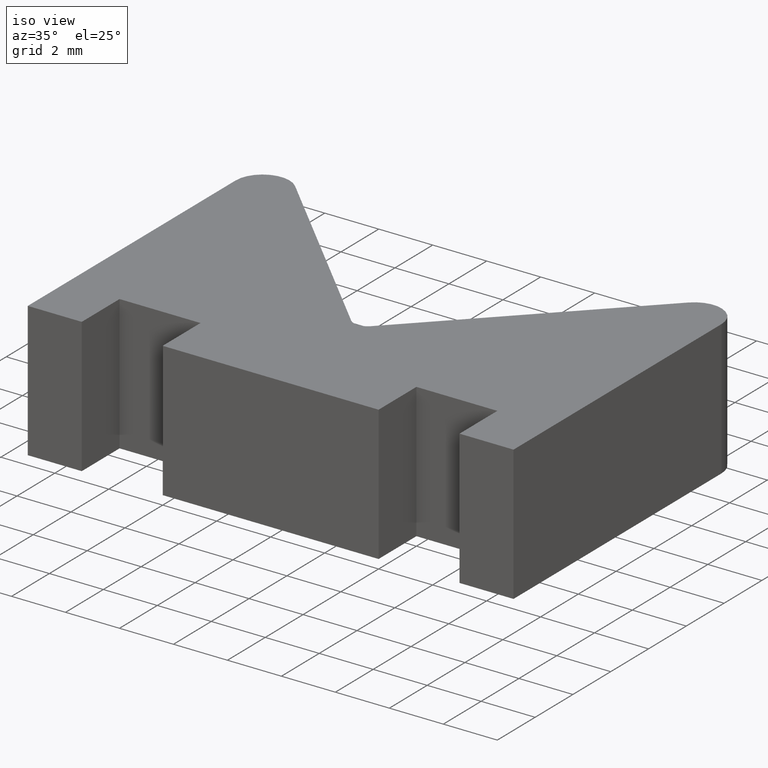
[diagram: clean part render]
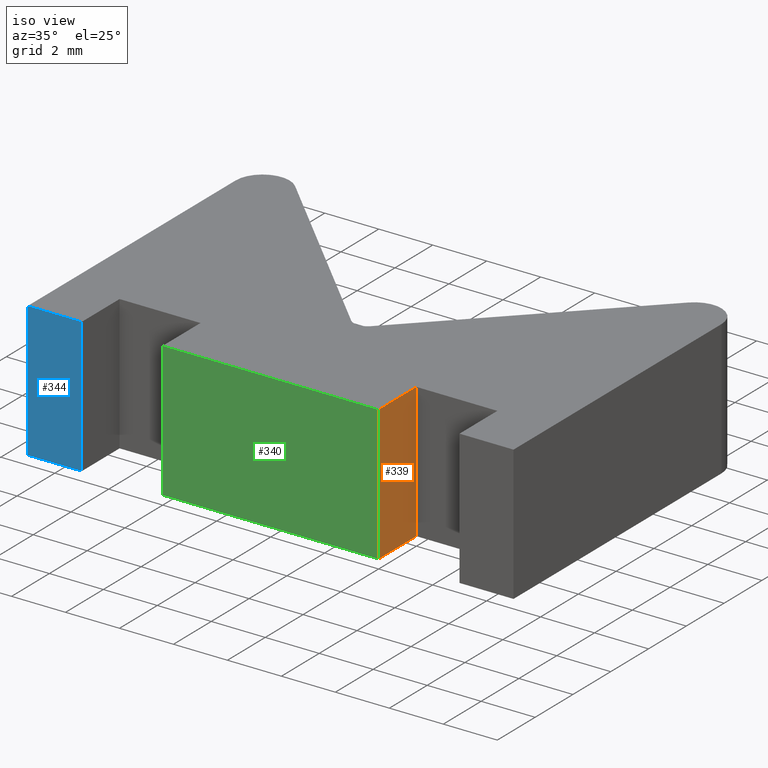
[diagram: same view with three faces highlighted in distinct colors, each labeled with its STEP entity id]
A machine part, iso view with three faces highlighted in distinct colors.
Their STEP definitions:

[orange] entity #339 — the highlighted planar face has unit normal (1, 0, 0).
#22=FACE_OUTER_BOUND('',#40,.T.);
#40=EDGE_LOOP('',(#249,#250,#251,#252));
#65=LINE('',#505,#107);
#78=LINE('',#536,#120);
#79=LINE('',#539,#121);
#80=LINE('',#540,#122);
#107=VECTOR('',#409,10.);
#120=VECTOR('',#432,10.);
#121=VECTOR('',#435,10.);
#122=VECTOR('',#436,10.);
#149=VERTEX_POINT('',#502);
#150=VERTEX_POINT('',#504);
#163=VERTEX_POINT('',#534);
#164=VERTEX_POINT('',#538);
#181=EDGE_CURVE('',#150,#149,#65,.T.);
#197=EDGE_CURVE('',#163,#149,#78,.T.);
#198=EDGE_CURVE('',#163,#164,#79,.T.);
#199=EDGE_CURVE('',#164,#150,#80,.T.);
#249=ORIENTED_EDGE('',*,*,#198,.T.);
#250=ORIENTED_EDGE('',*,*,#199,.T.);
#251=ORIENTED_EDGE('',*,*,#181,.T.);
#252=ORIENTED_EDGE('',*,*,#197,.F.);
#324=PLANE('',#383);
#339=ADVANCED_FACE('',(#22),#324,.T.);
#383=AXIS2_PLACEMENT_3D('',#537,#433,#434);
#409=DIRECTION('',(0.,1.,0.));
#432=DIRECTION('',(0.,0.,-1.));
#433=DIRECTION('center_axis',(1.,0.,0.));
#434=DIRECTION('ref_axis',(0.,0.,-1.));
#435=DIRECTION('',(0.,-1.,0.));
#436=DIRECTION('',(0.,0.,-1.));
#502=CARTESIAN_POINT('',(4.,0.,-2.5));
#504=CARTESIAN_POINT('',(4.,-2.,-2.5));
#505=CARTESIAN_POINT('',(4.,0.,-2.5));
#534=CARTESIAN_POINT('',(4.,0.,2.5));
#536=CARTESIAN_POINT('',(4.,0.,0.));
#537=CARTESIAN_POINT('Origin',(4.,0.,0.));
#538=CARTESIAN_POINT('',(4.,-2.,2.5));
#539=CARTESIAN_POINT('',(4.,0.,2.5));
#540=CARTESIAN_POINT('',(4.,-2.,0.));

[blue] entity #344 — the highlighted planar face has unit normal (0, -1, 0).
#27=FACE_OUTER_BOUND('',#45,.T.);
#45=EDGE_LOOP('',(#269,#270,#271,#272));
#70=LINE('',#515,#112);
#88=LINE('',#556,#130);
#89=LINE('',#559,#131);
#90=LINE('',#560,#132);
#112=VECTOR('',#414,10.);
#130=VECTOR('',#452,10.);
#131=VECTOR('',#455,10.);
#132=VECTOR('',#456,10.);
#154=VERTEX_POINT('',#512);
#155=VERTEX_POINT('',#514);
#168=VERTEX_POINT('',#554);
#169=VERTEX_POINT('',#558);
#186=EDGE_CURVE('',#155,#154,#70,.T.);
#207=EDGE_CURVE('',#168,#154,#88,.T.);
#208=EDGE_CURVE('',#168,#169,#89,.T.);
#209=EDGE_CURVE('',#169,#155,#90,.T.);
#269=ORIENTED_EDGE('',*,*,#208,.T.);
#270=ORIENTED_EDGE('',*,*,#209,.T.);
#271=ORIENTED_EDGE('',*,*,#186,.T.);
#272=ORIENTED_EDGE('',*,*,#207,.F.);
#329=PLANE('',#388);
#344=ADVANCED_FACE('',(#27),#329,.T.);
#388=AXIS2_PLACEMENT_3D('',#557,#453,#454);
#414=DIRECTION('',(1.,0.,0.));
#452=DIRECTION('',(0.,0.,-1.));
#453=DIRECTION('center_axis',(0.,-1.,0.));
#454=DIRECTION('ref_axis',(0.,0.,-1.));
#455=DIRECTION('',(-1.,0.,0.));
#456=DIRECTION('',(0.,0.,-1.));
#512=CARTESIAN_POINT('',(-7.,-2.,-2.5));
#514=CARTESIAN_POINT('',(-9.,-2.,-2.5));
#515=CARTESIAN_POINT('',(-7.,-2.,-2.5));
#554=CARTESIAN_POINT('',(-7.,-2.,2.5));
#556=CARTESIAN_POINT('',(-7.,-2.,0.));
#557=CARTESIAN_POINT('Origin',(-7.,-2.,0.));
#558=CARTESIAN_POINT('',(-9.,-2.,2.5));
#559=CARTESIAN_POINT('',(-7.,-2.,2.5));
#560=CARTESIAN_POINT('',(-9.,-2.,0.));

[green] entity #340 — the highlighted planar face has unit normal (0, -1, 0).
#23=FACE_OUTER_BOUND('',#41,.T.);
#41=EDGE_LOOP('',(#253,#254,#255,#256));
#66=LINE('',#507,#108);
#80=LINE('',#540,#122);
#81=LINE('',#543,#123);
#82=LINE('',#544,#124);
#108=VECTOR('',#410,10.);
#122=VECTOR('',#436,10.);
#123=VECTOR('',#439,10.);
#124=VECTOR('',#440,10.);
#150=VERTEX_POINT('',#504);
#151=VERTEX_POINT('',#506);
#164=VERTEX_POINT('',#538);
#165=VERTEX_POINT('',#542);
#182=EDGE_CURVE('',#151,#150,#66,.T.);
#199=EDGE_CURVE('',#164,#150,#80,.T.);
#200=EDGE_CURVE('',#164,#165,#81,.T.);
#201=EDGE_CURVE('',#165,#151,#82,.T.);
#253=ORIENTED_EDGE('',*,*,#200,.T.);
#254=ORIENTED_EDGE('',*,*,#201,.T.);
#255=ORIENTED_EDGE('',*,*,#182,.T.);
#256=ORIENTED_EDGE('',*,*,#199,.F.);
#325=PLANE('',#384);
#340=ADVANCED_FACE('',(#23),#325,.T.);
#384=AXIS2_PLACEMENT_3D('',#541,#437,#438);
#410=DIRECTION('',(1.,0.,0.));
#436=DIRECTION('',(0.,0.,-1.));
#437=DIRECTION('center_axis',(0.,-1.,0.));
#438=DIRECTION('ref_axis',(0.,0.,-1.));
#439=DIRECTION('',(-1.,0.,0.));
#440=DIRECTION('',(0.,0.,-1.));
#504=CARTESIAN_POINT('',(4.,-2.,-2.5));
#506=CARTESIAN_POINT('',(-4.,-2.,-2.5));
#507=CARTESIAN_POINT('',(4.,-2.,-2.5));
#538=CARTESIAN_POINT('',(4.,-2.,2.5));
#540=CARTESIAN_POINT('',(4.,-2.,0.));
#541=CARTESIAN_POINT('Origin',(4.,-2.,0.));
#542=CARTESIAN_POINT('',(-4.,-2.,2.5));
#543=CARTESIAN_POINT('',(4.,-2.,2.5));
#544=CARTESIAN_POINT('',(-4.,-2.,0.));